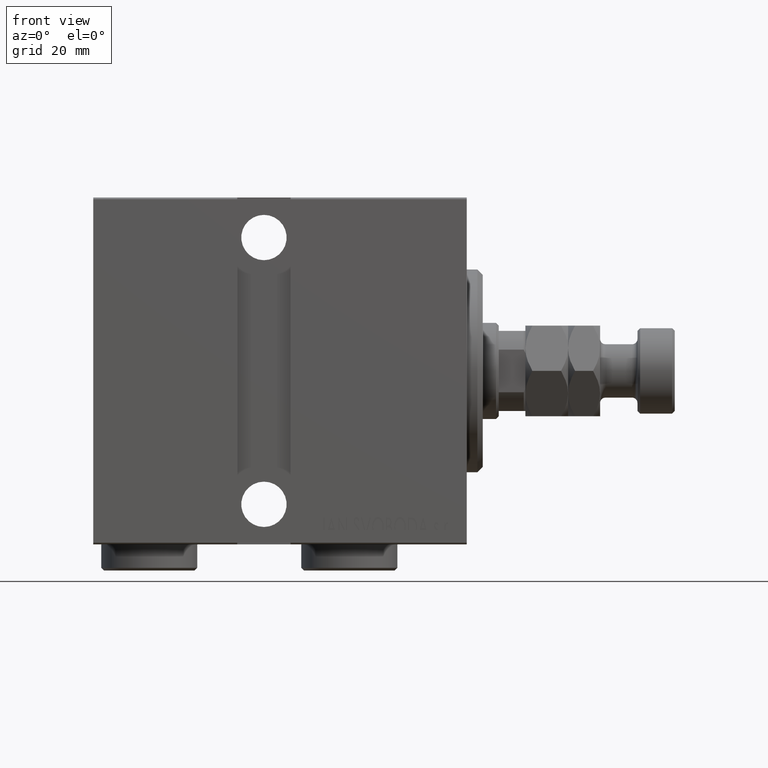
[diagram: clean part render]
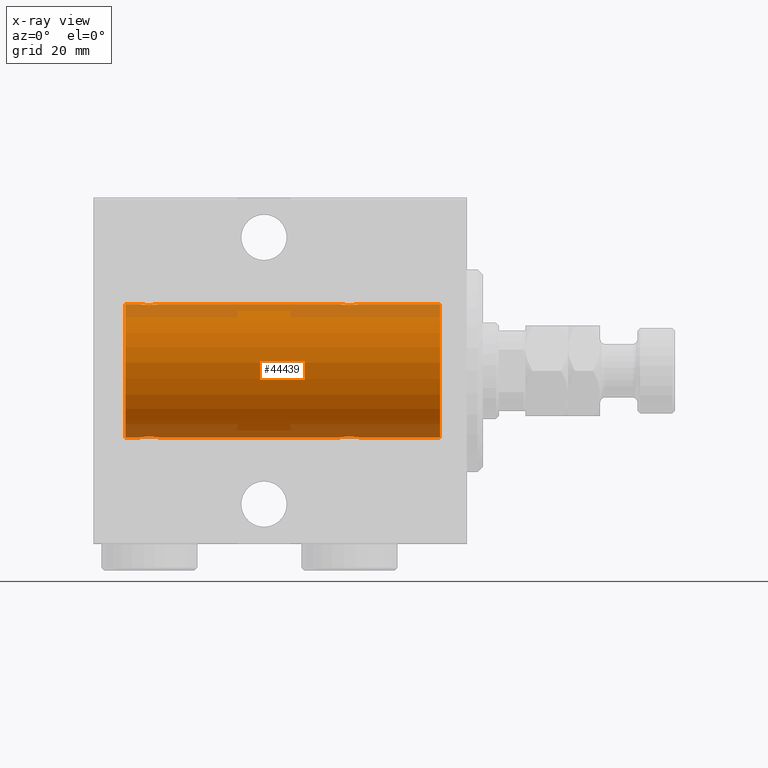
[diagram: x-ray — body ghosted, one internal face saturated and labeled with its STEP entity id]
A machine part, front view, then the same camera in x-ray: the body is ghosted and one INTERNAL B-rep face — a face not visible from any outside direction — is saturated and labeled: STEP entity #44439.
In plain terms, the highlighted cylindrical surface (partial cylindrical patch) has radius 12.5 mm, axis along (1, 0, -0).
Its self-contained STEP definition (entity closure, byte-faithful):
#451 = CARTESIAN_POINT ( 'NONE',  ( 24.00000000000000711, 0.1306394121199392910, -12.50000000000000533 ) ) ;
#1129 = CARTESIAN_POINT ( 'NONE',  ( 23.58991408680628155, 1.220297236145721609, -12.44076681548080288 ) ) ;
#1212 = CARTESIAN_POINT ( 'NONE',  ( 57.70300788371382339, 0.8876934327478099851, -12.46903010196599659 ) ) ;
#1339 = CARTESIAN_POINT ( 'NONE',  ( 58.85584766229707299, 1.897967064543087279, 12.35517291625592229 ) ) ;
#1564 = CARTESIAN_POINT ( 'NONE',  ( 57.70257508083844300, 0.8868029758979379951, 12.46909283808506430 ) ) ;
#1678 = DIRECTION ( 'NONE',  ( -1.000000000000000000, -0.000000000000000000, -0.000000000000000000 ) ) ;
#1760 = CARTESIAN_POINT ( 'NONE',  ( 20.78019209405420042, 1.590288205413970646, 12.39864157855465088 ) ) ;
#1775 = CARTESIAN_POINT ( 'NONE',  ( 4.999999999999997335, 1.530808498934191521E-15, -12.50000000000000000 ) ) ;
#1992 = CARTESIAN_POINT ( 'NONE',  ( 19.99999999999999645, -7.265724481447607133E-23, 12.50000000000000000 ) ) ;
#2144 = DIRECTION ( 'NONE',  ( -1.000000000000000000, -0.000000000000000000, -0.000000000000000000 ) ) ;
#2457 = CARTESIAN_POINT ( 'NONE',  ( 22.26211806331624743, 1.999901172190676757, 12.33897869807161563 ) ) ;
#2646 = ORIENTED_EDGE ( 'NONE', *, *, #44447, .T. ) ;
#2793 = CARTESIAN_POINT ( 'NONE',  ( 20.01301208516349206, 0.2624928479599882847, -12.49789934882883458 ) ) ;
#3021 = CARTESIAN_POINT ( 'NONE',  ( 21.47436412829510033, 1.947190906025044077, -12.34781876294798053 ) ) ;
#3259 = CARTESIAN_POINT ( 'NONE',  ( 57.50000000000000000, -7.533308568696040923E-15, -12.50000000000000000 ) ) ;
#3714 = CARTESIAN_POINT ( 'NONE',  ( 20.40963319990594016, 1.219754986802279451, -12.44082361696003503 ) ) ;
#4048 = CARTESIAN_POINT ( 'NONE',  ( 4.999999999999997335, 0.000000000000000000, 0.000000000000000000 ) ) ;
#4606 = CARTESIAN_POINT ( 'NONE',  ( 57.99266449635677390, 1.321095788880536581, 12.43034574091277733 ) ) ;
#4825 = CARTESIAN_POINT ( 'NONE',  ( 60.72966493873149574, 1.598680238462370617, 12.39873273758732353 ) ) ;
#4969 = EDGE_CURVE ( 'NONE', #8973, #25310, #21036, .T. ) ;
#5057 = CARTESIAN_POINT ( 'NONE',  ( 57.91008591319372556, 1.220297236145716946, 12.44076681548080288 ) ) ;
#5159 = CARTESIAN_POINT ( 'NONE',  ( 58.27033506126852558, 1.598680238462363956, -12.39873273758732353 ) ) ;
#5180 = CARTESIAN_POINT ( 'NONE',  ( 64.00000000000000000, 0.000000000000000000, 0.000000000000000000 ) ) ;
#5264 = DIRECTION ( 'NONE',  ( -1.000000000000000000, -0.000000000000000000, -0.000000000000000000 ) ) ;
#5343 = DIRECTION ( 'NONE',  ( -1.000000000000000000, -0.000000000000000000, -0.000000000000000000 ) ) ;
#6093 = EDGE_CURVE ( 'NONE', #35365, #21226, #34287, .T. ) ;
#6178 = EDGE_CURVE ( 'NONE', #13819, #21226, #31722, .T. ) ;
#7389 = CARTESIAN_POINT ( 'NONE',  ( 64.00000000000000000, 1.530808498934191521E-15, -12.50000000000000000 ) ) ;
#7647 = CARTESIAN_POINT ( 'NONE',  ( 23.32102833500698225, 1.507394620545640773, -12.40913174964213184 ) ) ;
#7958 = CARTESIAN_POINT ( 'NONE',  ( 58.49316879552502257, 1.747608771958137241, -12.37764291807175709 ) ) ;
#8090 = CARTESIAN_POINT ( 'NONE',  ( 57.60226968606340847, 0.6448065707253002321, 12.48394649977301540 ) ) ;
#8194 = CARTESIAN_POINT ( 'NONE',  ( 57.90963319990594727, 1.219754986802277896, -12.44082361696003680 ) ) ;
#8317 = CARTESIAN_POINT ( 'NONE',  ( 61.48698791483653281, 0.2624928479599922815, 12.49789934882883458 ) ) ;
#8334 = CARTESIAN_POINT ( 'NONE',  ( 24.00000000000000000, 1.530808426277417854E-15, -12.50000000000000000 ) ) ;
#8508 = CARTESIAN_POINT ( 'NONE',  ( 64.00000000000000000, 1.530808498934191521E-15, -12.50000000000000000 ) ) ;
#8531 = CARTESIAN_POINT ( 'NONE',  ( 58.49664185700819274, 1.734998657226764163, 12.37922086519035858 ) ) ;
#8633 = CARTESIAN_POINT ( 'NONE',  ( 60.71980790594580668, 1.590288205413971090, -12.39864157855465088 ) ) ;
#8973 = VERTEX_POINT ( 'NONE', #43365 ) ;
#9193 = CARTESIAN_POINT ( 'NONE',  ( 21.73730537545402086, 1.986986967296538564, 12.34109209020652465 ) ) ;
#9291 = DIRECTION ( 'NONE',  ( -1.000000000000000000, -0.000000000000000000, -0.000000000000000000 ) ) ;
#9412 = DIRECTION ( 'NONE',  ( -1.000000000000000000, 0.000000000000000000, 0.000000000000000000 ) ) ;
#9429 = CARTESIAN_POINT ( 'NONE',  ( 23.59036680009404918, 1.219754986802281005, 12.44082361696003325 ) ) ;
#9554 = ORIENTED_EDGE ( 'NONE', *, *, #14958, .F. ) ;
#9664 = CARTESIAN_POINT ( 'NONE',  ( 20.41008591319371490, 1.220297236145720277, 12.44076681548080288 ) ) ;
#9821 = CIRCLE ( 'NONE', #39365, 12.50000000000000000 ) ;
#10220 = CARTESIAN_POINT ( 'NONE',  ( 22.51937350851555308, 1.935814255713574905, -12.34922241902463114 ) ) ;
#11429 = CARTESIAN_POINT ( 'NONE',  ( 57.50000000000002132, 0.1323736289504287567, -12.50000000000000178 ) ) ;
#11527 = VERTEX_POINT ( 'NONE', #14497 ) ;
#12002 = CARTESIAN_POINT ( 'NONE',  ( 57.50000000000000000, 0.1306394121199370428, 12.50000000000000000 ) ) ;
#12096 = CARTESIAN_POINT ( 'NONE',  ( 60.01937350851554243, 1.935814255713572019, -12.34922241902462758 ) ) ;
#12192 = CARTESIAN_POINT ( 'NONE',  ( 20.06438225478150628, 0.5201193324741335555, 12.48983485452575337 ) ) ;
#12347 = CYLINDRICAL_SURFACE ( 'NONE', #37713, 12.50000000000000000 ) ;
#12665 = CARTESIAN_POINT ( 'NONE',  ( 23.98698791483650794, 0.2624928479599913378, 12.49789934882883458 ) ) ;
#12784 = CARTESIAN_POINT ( 'NONE',  ( 61.48690384766256045, 0.2633501011236106804, -12.49788564268283864 ) ) ;
#12889 = CARTESIAN_POINT ( 'NONE',  ( 23.79699211628616240, 0.8876934327478146480, 12.46903010196599304 ) ) ;
#13122 = CARTESIAN_POINT ( 'NONE',  ( 20.49266449635678100, 1.321095788880537247, 12.43034574091277911 ) ) ;
#13156 = EDGE_CURVE ( 'NONE', #35365, #14921, #37528, .T. ) ;
#13634 = CARTESIAN_POINT ( 'NONE',  ( 4.999999999999997335, 0.000000000000000000, 12.50000000000000000 ) ) ;
#13819 = VERTEX_POINT ( 'NONE', #15207 ) ;
#14497 = CARTESIAN_POINT ( 'NONE',  ( 24.00000000000000000, -4.527848004210791175E-16, 12.50000000000000000 ) ) ;
#14921 = VERTEX_POINT ( 'NONE', #39309 ) ;
#14958 = EDGE_CURVE ( 'NONE', #22125, #13819, #25803, .T. ) ;
#15108 = EDGE_LOOP ( 'NONE', ( #23892, #9554, #2646, #18999, #25268, #41407, #17613, #17886, #38769, #41763, #17930, #36232 ) ) ;
#15207 = CARTESIAN_POINT ( 'NONE',  ( 64.00000000000000000, 1.530808498934191521E-15, -12.50000000000000000 ) ) ;
#15484 = CARTESIAN_POINT ( 'NONE',  ( 58.98062649148444336, 1.935814255713572241, 12.34922241902463291 ) ) ;
#15674 = CARTESIAN_POINT ( 'NONE',  ( 23.50601633672791735, 1.322451657002076786, 12.43019346654085311 ) ) ;
#15929 = CARTESIAN_POINT ( 'NONE',  ( 19.99999999999999645, -7.265724481447607133E-23, 12.50000000000000000 ) ) ;
#16606 = CARTESIAN_POINT ( 'NONE',  ( 21.87007370639734916, 2.000049200055400878, 12.33895470450623044 ) ) ;
#16690 = CARTESIAN_POINT ( 'NONE',  ( 64.00000000000000000, 1.530808498934191521E-15, -12.50000000000000000 ) ) ;
#16717 = CARTESIAN_POINT ( 'NONE',  ( 61.50000000000000711, 1.530808426270318106E-15, -12.50000000000000000 ) ) ;
#16935 = CARTESIAN_POINT ( 'NONE',  ( 20.20300788371381273, 0.8876934327478117615, -12.46903010196599304 ) ) ;
#17165 = CARTESIAN_POINT ( 'NONE',  ( 21.73788193668374902, 1.999901172190678533, -12.33897869807161385 ) ) ;
#17613 = ORIENTED_EDGE ( 'NONE', *, *, #42328, .T. ) ;
#17624 = CARTESIAN_POINT ( 'NONE',  ( 20.26446744561862801, 1.002494658017155871, -12.46021263690096958 ) ) ;
#17858 = CARTESIAN_POINT ( 'NONE',  ( 19.99999999999999645, 0.1323736289504319763, -12.50000000000000000 ) ) ;
#17886 = ORIENTED_EDGE ( 'NONE', *, *, #20898, .T. ) ;
#17930 = ORIENTED_EDGE ( 'NONE', *, *, #13156, .F. ) ;
#18189 = DIRECTION ( 'NONE',  ( -1.000000000000000000, 0.000000000000000000, 0.000000000000000000 ) ) ;
#18756 = CARTESIAN_POINT ( 'NONE',  ( 23.89773031393658087, 0.6448065707253023415, -12.48394649977302073 ) ) ;
#18958 = CARTESIAN_POINT ( 'NONE',  ( 60.50683120447499164, 1.747608771958137908, 12.37764291807175354 ) ) ;
#18979 = CARTESIAN_POINT ( 'NONE',  ( 23.79742491916155700, 0.8868029758979399935, -12.46909283808506430 ) ) ;
#18999 = ORIENTED_EDGE ( 'NONE', *, *, #4969, .T. ) ;
#19059 = CARTESIAN_POINT ( 'NONE',  ( 57.50000000000000000, -7.533308568696040923E-15, -12.50000000000000000 ) ) ;
#19189 = CARTESIAN_POINT ( 'NONE',  ( 58.17897166499302841, 1.507394620545639219, 12.40913174964213539 ) ) ;
#19287 = CARTESIAN_POINT ( 'NONE',  ( 61.00733550364321900, 1.321095788880535915, -12.43034574091278088 ) ) ;
#19383 = CARTESIAN_POINT ( 'NONE',  ( 23.22966493873148863, 1.598680238462369507, 12.39873273758732353 ) ) ;
#19991 = VECTOR ( 'NONE', #9291, 1000.000000000000000 ) ;
#19993 = FACE_OUTER_BOUND ( 'NONE', #15108, .T. ) ;
#20076 = CARTESIAN_POINT ( 'NONE',  ( 23.89747729701804602, 0.6455696738844928229, 12.48390768591463207 ) ) ;
#20216 = DIRECTION ( 'NONE',  ( 0.000000000000000000, 0.000000000000000000, 1.000000000000000000 ) ) ;
#20898 = EDGE_CURVE ( 'NONE', #21684, #31952, #9821, .T. ) ;
#20943 = VERTEX_POINT ( 'NONE', #23903 ) ;
#21036 = B_SPLINE_CURVE_WITH_KNOTS ( 'NONE', 3,
 ( #36332, #21977, #8317, #26335, #43478, #36779, #43697, #36552, #39792, #4825, #18958, #22647, #36102, #29843, #39565, #15484, #1339, #22208, #8531, #29623, #19189, #4606, #5057, #40235, #1564, #8090, #43916, #25894, #12002, #26112 ),
 .UNSPECIFIED., .F., .F.,
 ( 4, 2, 2, 2, 2, 2, 2, 2, 2, 2, 2, 2, 2, 2, 4 ),
 ( 7.010636526547347862E-19, 0.0003914362731607671695, 0.0007828725463215335800, 0.001174308819482300153, 0.001565745092643066510, 0.002348617638964585128, 0.003131490185286103529, 0.003522926458446862079, 0.003914362731607621063, 0.004305799004768380046, 0.004697235277929138163, 0.005088671551089898014, 0.005480107824250656998, 0.005871544097411415114, 0.006262980370572174098 ),
 .UNSPECIFIED. ) ;
#21053 = CARTESIAN_POINT ( 'NONE',  ( 61.50000000000001421, 0.1306394121199392355, -12.50000000000000178 ) ) ;
#21084 = CARTESIAN_POINT ( 'NONE',  ( 20.06395648222636652, 0.5184196815546032733, -12.48990118705761532 ) ) ;
#21102 = CARTESIAN_POINT ( 'NONE',  ( 57.50000000000000000, -7.266434456262306043E-23, 12.50000000000000000 ) ) ;
#21226 = VERTEX_POINT ( 'NONE', #16717 ) ;
#21684 = VERTEX_POINT ( 'NONE', #13634 ) ;
#21977 = CARTESIAN_POINT ( 'NONE',  ( 61.50000000000000711, 0.1323736289504353347, 12.50000000000000178 ) ) ;
#22125 = VERTEX_POINT ( 'NONE', #43122 ) ;
#22208 = CARTESIAN_POINT ( 'NONE',  ( 58.61343686466983627, 1.797558627508994089, 12.37018026341338484 ) ) ;
#22647 = CARTESIAN_POINT ( 'NONE',  ( 60.02563587170491388, 1.947190906025042967, 12.34781876294798408 ) ) ;
#22746 = CARTESIAN_POINT ( 'NONE',  ( 60.82102833500698580, 1.507394620545638331, -12.40913174964213184 ) ) ;
#22847 = CARTESIAN_POINT ( 'NONE',  ( 23.93604351777363348, 0.5184196815546062709, 12.48990118705761532 ) ) ;
#23217 = CARTESIAN_POINT ( 'NONE',  ( 64.00000000000000000, 0.000000000000000000, 12.50000000000000000 ) ) ;
#23430 = CARTESIAN_POINT ( 'NONE',  ( 61.23470742397612554, 1.003863686549173462, -12.46009879577771429 ) ) ;
#23591 = VERTEX_POINT ( 'NONE', #15929 ) ;
#23892 = ORIENTED_EDGE ( 'NONE', *, *, #6178, .F. ) ;
#23903 = CARTESIAN_POINT ( 'NONE',  ( 19.99999999999999645, -3.966047509268588167E-15, -12.50000000000000000 ) ) ;
#24087 = CARTESIAN_POINT ( 'NONE',  ( 20.49398366327207910, 1.322451657002076120, -12.43019346654084956 ) ) ;
#24323 = CARTESIAN_POINT ( 'NONE',  ( 22.64415233770293412, 1.897967064543090165, -12.35517291625592051 ) ) ;
#24554 = CARTESIAN_POINT ( 'NONE',  ( 19.99999999999999645, -3.966047509268588167E-15, -12.50000000000000000 ) ) ;
#24611 = EDGE_CURVE ( 'NONE', #11527, #23591, #42252, .T. ) ;
#25268 = ORIENTED_EDGE ( 'NONE', *, *, #45485, .T. ) ;
#25310 = VERTEX_POINT ( 'NONE', #21102 ) ;
#25349 = DIRECTION ( 'NONE',  ( -1.000000000000000000, -0.000000000000000000, -0.000000000000000000 ) ) ;
#25534 = CARTESIAN_POINT ( 'NONE',  ( 57.99398366327209686, 1.322451657002070347, -12.43019346654085489 ) ) ;
#25803 = CIRCLE ( 'NONE', #44989, 12.50000000000000000 ) ;
#25894 = CARTESIAN_POINT ( 'NONE',  ( 57.51309615233746086, 0.2633501011236094591, 12.49788564268283864 ) ) ;
#26112 = CARTESIAN_POINT ( 'NONE',  ( 57.50000000000000000, -7.266434456262306043E-23, 12.50000000000000000 ) ) ;
#26129 = CARTESIAN_POINT ( 'NONE',  ( 22.88656313533016373, 1.797558627508998086, -12.37018026341338839 ) ) ;
#26204 = CARTESIAN_POINT ( 'NONE',  ( 60.38656313533017084, 1.797558627508995643, -12.37018026341338484 ) ) ;
#26304 = CARTESIAN_POINT ( 'NONE',  ( 20.01309615233744310, 0.2633501011236105693, 12.49788564268283864 ) ) ;
#26335 = CARTESIAN_POINT ( 'NONE',  ( 61.43604351777364059, 0.5184196815546071591, 12.48990118705761354 ) ) ;
#26697 = LINE ( 'NONE', #23217, #29585 ) ;
#26901 = CARTESIAN_POINT ( 'NONE',  ( 61.50000000000000711, 1.530808426270318106E-15, -12.50000000000000000 ) ) ;
#27003 = CARTESIAN_POINT ( 'NONE',  ( 23.73553255438136134, 1.002494658017157647, 12.46021263690096958 ) ) ;
#27110 = LINE ( 'NONE', #37777, #19991 ) ;
#27245 = CARTESIAN_POINT ( 'NONE',  ( 20.99664185700817498, 1.734998657226762386, 12.37922086519035680 ) ) ;
#27801 = CARTESIAN_POINT ( 'NONE',  ( 22.12992629360264729, 2.000049200055402210, -12.33895470450623044 ) ) ;
#28738 = CARTESIAN_POINT ( 'NONE',  ( 23.50733550364322255, 1.321095788880538136, -12.43034574091277911 ) ) ;
#29182 = CARTESIAN_POINT ( 'NONE',  ( 23.21980790594580313, 1.590288205413975309, -12.39864157855465088 ) ) ;
#29497 = CARTESIAN_POINT ( 'NONE',  ( 59.62992629360267216, 2.000049200055399545, -12.33895470450622867 ) ) ;
#29585 = VECTOR ( 'NONE', #1678, 1000.000000000000000 ) ;
#29623 = CARTESIAN_POINT ( 'NONE',  ( 58.28019209405419332, 1.590288205413972866, 12.39864157855464732 ) ) ;
#29815 = CARTESIAN_POINT ( 'NONE',  ( 20.20257508083844300, 0.8868029758979382171, 12.46909283808506430 ) ) ;
#29843 = CARTESIAN_POINT ( 'NONE',  ( 59.37007370639736337, 2.000049200055400878, 12.33895470450623222 ) ) ;
#29938 = CARTESIAN_POINT ( 'NONE',  ( 60.50335814299182857, 1.734998657226762608, -12.37922086519035680 ) ) ;
#30266 = CARTESIAN_POINT ( 'NONE',  ( 64.00000000000000000, 0.000000000000000000, 0.000000000000000000 ) ) ;
#30284 = CARTESIAN_POINT ( 'NONE',  ( 21.48062649148445402, 1.935814255713573351, 12.34922241902463114 ) ) ;
#31722 = LINE ( 'NONE', #7389, #34520 ) ;
#31874 = CARTESIAN_POINT ( 'NONE',  ( 64.00000000000000000, 0.000000000000000000, 12.50000000000000000 ) ) ;
#31952 = VERTEX_POINT ( 'NONE', #1775 ) ;
#32202 = CARTESIAN_POINT ( 'NONE',  ( 23.98690384766256400, 0.2633501011236120681, -12.49788564268284041 ) ) ;
#32326 = DIRECTION ( 'NONE',  ( 0.000000000000000000, 0.000000000000000000, 1.000000000000000000 ) ) ;
#32437 = CARTESIAN_POINT ( 'NONE',  ( 23.93561774521849728, 0.5201193324741352209, -12.48983485452574982 ) ) ;
#32738 = CARTESIAN_POINT ( 'NONE',  ( 57.76446744561862801, 1.002494658017153872, -12.46021263690097136 ) ) ;
#32962 = CARTESIAN_POINT ( 'NONE',  ( 57.56395648222637362, 0.5184196815546008308, -12.48990118705761354 ) ) ;
#33109 = CARTESIAN_POINT ( 'NONE',  ( 23.00335814299181436, 1.734998657226765939, -12.37922086519035325 ) ) ;
#33188 = CARTESIAN_POINT ( 'NONE',  ( 59.76269462454598624, 1.986986967296537232, -12.34109209020652465 ) ) ;
#33507 = CARTESIAN_POINT ( 'NONE',  ( 20.10226968606341558, 0.6448065707253003431, 12.48394649977302073 ) ) ;
#33632 = CARTESIAN_POINT ( 'NONE',  ( 61.39773031393659863, 0.6448065707252995660, -12.48394649977301718 ) ) ;
#34194 = CARTESIAN_POINT ( 'NONE',  ( 23.00683120447499519, 1.747608771958141016, 12.37764291807175887 ) ) ;
#34287 = B_SPLINE_CURVE_WITH_KNOTS ( 'NONE', 3,
 ( #19059, #11429, #39661, #32962, #40113, #1212, #32738, #8194, #25534, #5159, #7958, #36204, #43793, #29497, #33188, #12096, #35974, #26204, #29938, #8633, #22746, #19287, #40794, #23430, #41255, #33632, #37330, #12784, #21053, #26901 ),
 .UNSPECIFIED., .F., .F.,
 ( 4, 2, 2, 2, 2, 2, 2, 2, 2, 2, 2, 2, 2, 2, 4 ),
 ( 8.524058063799960461E-19, 0.0003914362731607507980, 0.0007828725463215007287, 0.001174308819482250280, 0.001565745092642999723, 0.002348617638964514438, 0.003131490185286029369, 0.003522926458446797027, 0.003914362731607565551, 0.004305799004768333209, 0.004697235277929100866, 0.005088671551089869391, 0.005480107824250637048, 0.005871544097411405573, 0.006262980370572173230 ),
 .UNSPECIFIED. ) ;
#34423 = CARTESIAN_POINT ( 'NONE',  ( 24.00000000000000000, -4.527848004210791175E-16, 12.50000000000000000 ) ) ;
#34520 = VECTOR ( 'NONE', #43238, 1000.000000000000000 ) ;
#34759 = CARTESIAN_POINT ( 'NONE',  ( 20.99316879552500481, 1.747608771958139906, -12.37764291807175354 ) ) ;
#35210 = CARTESIAN_POINT ( 'NONE',  ( 20.10252270298193622, 0.6455696738844897142, -12.48390768591463207 ) ) ;
#35226 = VECTOR ( 'NONE', #5264, 1000.000000000000000 ) ;
#35365 = VERTEX_POINT ( 'NONE', #3259 ) ;
#35477 = B_SPLINE_CURVE_WITH_KNOTS ( 'NONE', 3,
 ( #24554, #17858, #2793, #21084, #35210, #16935, #17624, #3714, #24087, #38224, #34759, #3021, #17165, #27801, #41914, #10220, #24323, #26129, #33109, #29182, #7647, #28738, #1129, #39363, #18979, #18756, #32437, #32202, #451, #8334 ),
 .UNSPECIFIED., .F., .F.,
 ( 4, 2, 2, 2, 2, 2, 2, 2, 2, 2, 2, 2, 2, 2, 4 ),
 ( 3.611342868676865251E-19, 0.0003914362731607586585, 0.0007828725463215168833, 0.001174308819482275217, 0.001565745092643033550, 0.002348617638964549999, 0.003131490185286066666, 0.003522926458446830420, 0.003914362731607594174, 0.004305799004768357495, 0.004697235277929121683, 0.005088671551089885003, 0.005480107824250649191, 0.005871544097411412512, 0.006262980370572176700 ),
 .UNSPECIFIED. ) ;
#35482 = VECTOR ( 'NONE', #5343, 1000.000000000000000 ) ;
#35783 = LINE ( 'NONE', #31874, #45753 ) ;
#35974 = CARTESIAN_POINT ( 'NONE',  ( 60.14415233770295544, 1.897967064543087723, -12.35517291625591874 ) ) ;
#36055 = EDGE_CURVE ( 'NONE', #20943, #31952, #36984, .T. ) ;
#36102 = CARTESIAN_POINT ( 'NONE',  ( 59.76211806331624388, 1.999901172190677201, 12.33897869807161385 ) ) ;
#36204 = CARTESIAN_POINT ( 'NONE',  ( 58.97436412829508612, 1.947190906025040746, -12.34781876294798231 ) ) ;
#36232 = ORIENTED_EDGE ( 'NONE', *, *, #6093, .T. ) ;
#36332 = CARTESIAN_POINT ( 'NONE',  ( 61.50000000000000711, -7.215738317004035941E-16, 12.50000000000000000 ) ) ;
#36552 = CARTESIAN_POINT ( 'NONE',  ( 61.09036680009405984, 1.219754986802282115, 12.44082361696003147 ) ) ;
#36779 = CARTESIAN_POINT ( 'NONE',  ( 61.29699211628619793, 0.8876934327478148701, 12.46903010196599659 ) ) ;
#36984 = LINE ( 'NONE', #8508, #35226 ) ;
#37206 = CARTESIAN_POINT ( 'NONE',  ( 20.67897166499301775, 1.507394620545639441, 12.40913174964213361 ) ) ;
#37330 = CARTESIAN_POINT ( 'NONE',  ( 61.43561774521850083, 0.5201193324741332225, -12.48983485452574982 ) ) ;
#37440 = CARTESIAN_POINT ( 'NONE',  ( 22.52563587170489967, 1.947190906025044299, 12.34781876294798408 ) ) ;
#37528 = LINE ( 'NONE', #16690, #35482 ) ;
#37658 = DIRECTION ( 'NONE',  ( 0.000000000000000000, 0.000000000000000000, 1.000000000000000000 ) ) ;
#37713 = AXIS2_PLACEMENT_3D ( 'NONE', #5180, #2144, #20216 ) ;
#37777 = CARTESIAN_POINT ( 'NONE',  ( 64.00000000000000000, 0.000000000000000000, 12.50000000000000000 ) ) ;
#38224 = CARTESIAN_POINT ( 'NONE',  ( 20.77033506126850426, 1.598680238462369951, -12.39873273758732175 ) ) ;
#38769 = ORIENTED_EDGE ( 'NONE', *, *, #36055, .F. ) ;
#39309 = CARTESIAN_POINT ( 'NONE',  ( 24.00000000000000000, 1.530808426277417854E-15, -12.50000000000000000 ) ) ;
#39363 = CARTESIAN_POINT ( 'NONE',  ( 23.73470742397611843, 1.003863686549172352, -12.46009879577771606 ) ) ;
#39365 = AXIS2_PLACEMENT_3D ( 'NONE', #4048, #18189, #32326 ) ;
#39565 = CARTESIAN_POINT ( 'NONE',  ( 59.23730537545403507, 1.986986967296537676, 12.34109209020652820 ) ) ;
#39649 = EDGE_CURVE ( 'NONE', #20943, #14921, #35477, .T. ) ;
#39661 = CARTESIAN_POINT ( 'NONE',  ( 57.51301208516348851, 0.2624928479599860642, -12.49789934882883458 ) ) ;
#39792 = CARTESIAN_POINT ( 'NONE',  ( 61.00601633672791024, 1.322451657002079006, 12.43019346654084956 ) ) ;
#40113 = CARTESIAN_POINT ( 'NONE',  ( 57.60252270298195043, 0.6455696738844883820, -12.48390768591463384 ) ) ;
#40235 = CARTESIAN_POINT ( 'NONE',  ( 57.76529257602388157, 1.003863686549167022, 12.46009879577771429 ) ) ;
#40437 = CARTESIAN_POINT ( 'NONE',  ( 20.00000000000000000, 0.1306394121199368485, 12.50000000000000000 ) ) ;
#40669 = CARTESIAN_POINT ( 'NONE',  ( 24.00000000000000355, 0.1323736289504353625, 12.50000000000000000 ) ) ;
#40794 = CARTESIAN_POINT ( 'NONE',  ( 61.08991408680628155, 1.220297236145721387, -12.44076681548080110 ) ) ;
#40897 = CARTESIAN_POINT ( 'NONE',  ( 21.35584766229706588, 1.897967064543088833, 12.35517291625592051 ) ) ;
#41255 = CARTESIAN_POINT ( 'NONE',  ( 61.29742491916157121, 0.8868029758979365518, -12.46909283808506430 ) ) ;
#41362 = CARTESIAN_POINT ( 'NONE',  ( 20.26529257602389222, 1.003863686549171019, 12.46009879577771606 ) ) ;
#41407 = ORIENTED_EDGE ( 'NONE', *, *, #24611, .T. ) ;
#41763 = ORIENTED_EDGE ( 'NONE', *, *, #39649, .T. ) ;
#41914 = CARTESIAN_POINT ( 'NONE',  ( 22.26269462454597914, 1.986986967296540119, -12.34109209020652465 ) ) ;
#42252 = B_SPLINE_CURVE_WITH_KNOTS ( 'NONE', 3,
 ( #34423, #40669, #12665, #22847, #20076, #12889, #27003, #9429, #15674, #19383, #34194, #37440, #2457, #16606, #9193, #30284, #40897, #44812, #27245, #1760, #37206, #13122, #9664, #41362, #29815, #33507, #12192, #26304, #40437, #1992 ),
 .UNSPECIFIED., .F., .F.,
 ( 4, 2, 2, 2, 2, 2, 2, 2, 2, 2, 2, 2, 2, 2, 4 ),
 ( 4.399147420600248434E-19, 0.0003914362731607583874, 0.0007828725463215163412, 0.001174308819482274349, 0.001565745092643032249, 0.002348617638964548265, 0.003131490185286064497, 0.003522926458446828252, 0.003914362731607592440, 0.004305799004768355760, 0.004697235277929119081, 0.005088671551089882401, 0.005480107824250645722, 0.005871544097411409910, 0.006262980370572172363 ),
 .UNSPECIFIED. ) ;
#42328 = EDGE_CURVE ( 'NONE', #23591, #21684, #35783, .T. ) ;
#43122 = CARTESIAN_POINT ( 'NONE',  ( 64.00000000000000000, 0.000000000000000000, 12.50000000000000000 ) ) ;
#43238 = DIRECTION ( 'NONE',  ( -1.000000000000000000, -0.000000000000000000, -0.000000000000000000 ) ) ;
#43365 = CARTESIAN_POINT ( 'NONE',  ( 61.50000000000000711, -7.215738317004035941E-16, 12.50000000000000000 ) ) ;
#43478 = CARTESIAN_POINT ( 'NONE',  ( 61.39747729701806378, 0.6455696738844931559, 12.48390768591463384 ) ) ;
#43697 = CARTESIAN_POINT ( 'NONE',  ( 61.23553255438137910, 1.002494658017159423, 12.46021263690096958 ) ) ;
#43793 = CARTESIAN_POINT ( 'NONE',  ( 59.23788193668374902, 1.999901172190674981, -12.33897869807161207 ) ) ;
#43916 = CARTESIAN_POINT ( 'NONE',  ( 57.56438225478149917, 0.5201193324741324453, 12.48983485452574982 ) ) ;
#44439 = ADVANCED_FACE ( 'NONE', ( #19993 ), #12347, .F. ) ;
#44447 = EDGE_CURVE ( 'NONE', #22125, #8973, #26697, .T. ) ;
#44812 = CARTESIAN_POINT ( 'NONE',  ( 21.11343686466984693, 1.797558627508996532, 12.37018026341339194 ) ) ;
#44989 = AXIS2_PLACEMENT_3D ( 'NONE', #30266, #9412, #37658 ) ;
#45485 = EDGE_CURVE ( 'NONE', #25310, #11527, #27110, .T. ) ;
#45753 = VECTOR ( 'NONE', #25349, 1000.000000000000000 ) ;